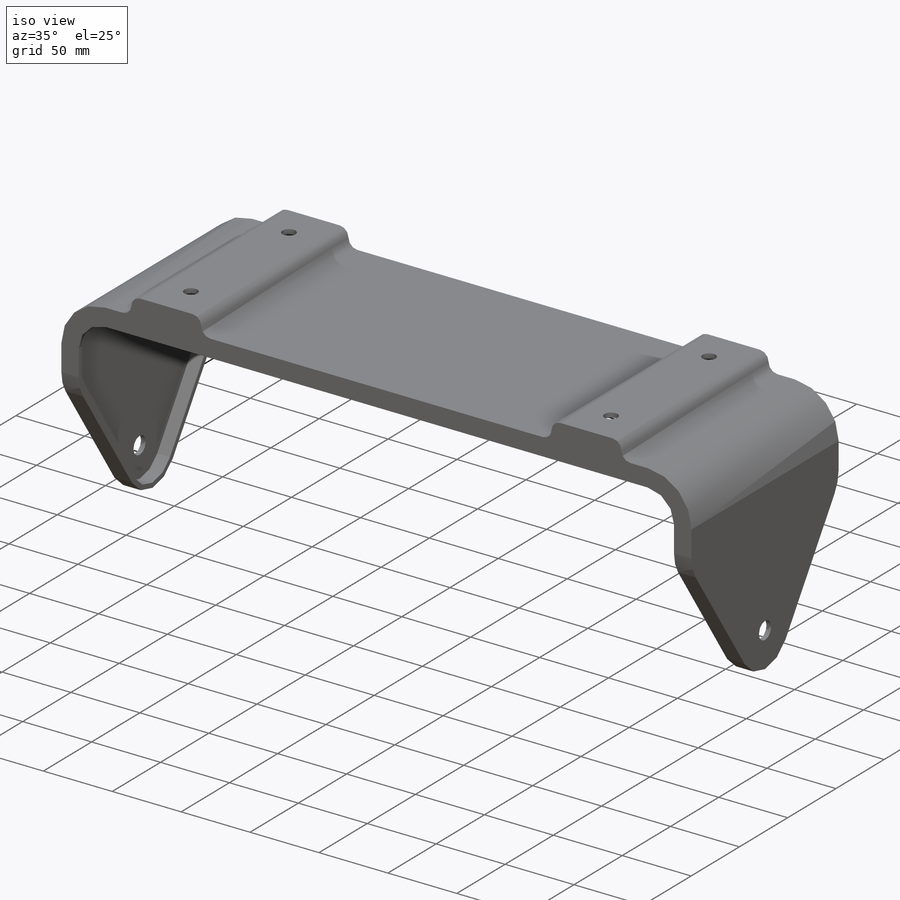
[diagram: iso view]
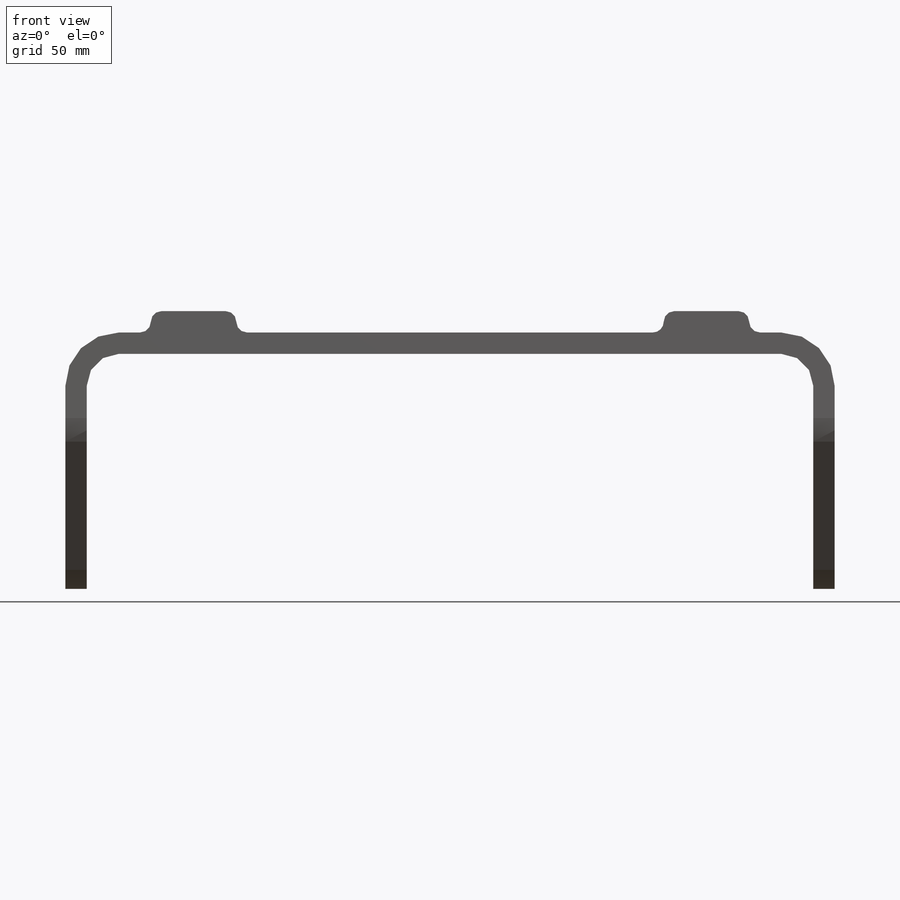
[diagram: front view]
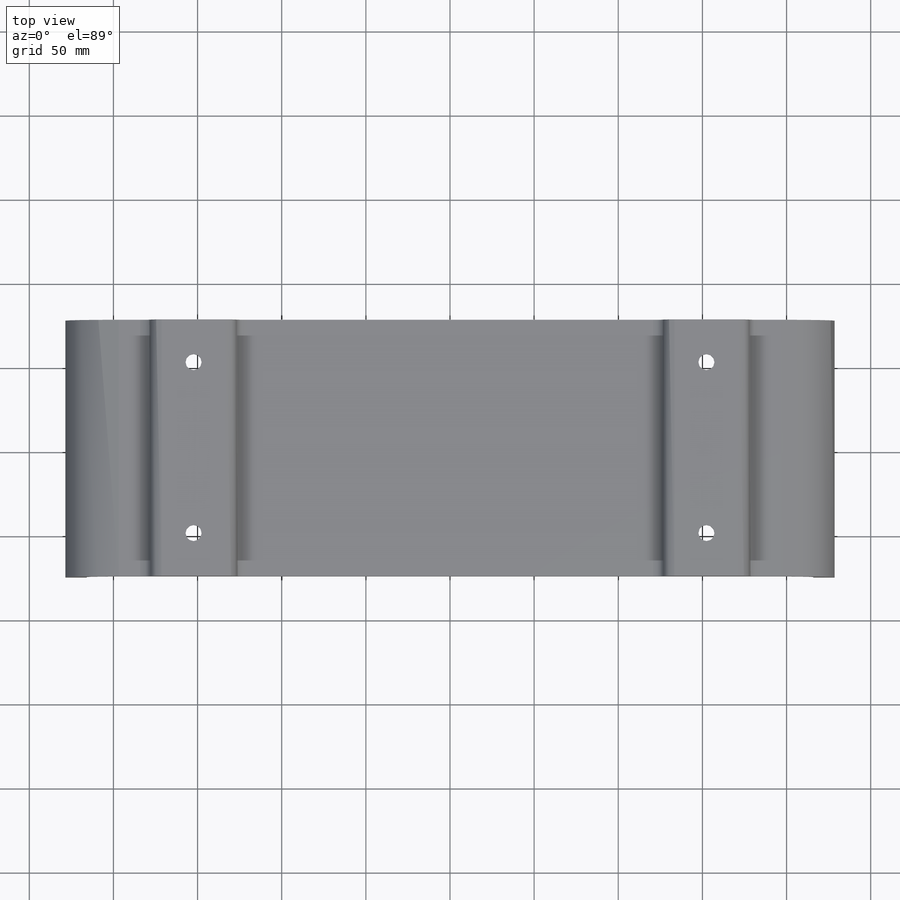
[diagram: top view]
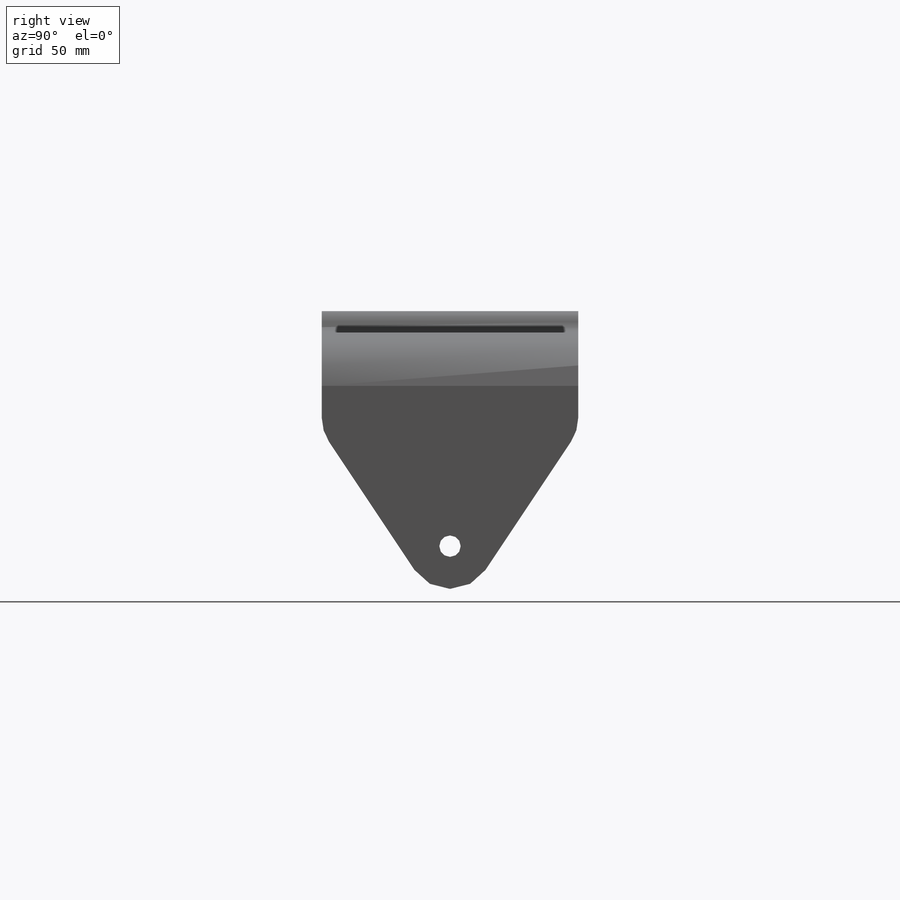
[diagram: right view]
SOLIDWORKS PART (.sldprt)
format: sldprt  version: not decoded by parser v0  size: 687,616 bytes
history: native  units: mm
features: sketch x11, hole x3, cut_extrude x2, extrude x2, fillet x2, material x1, mirror x1, shell x1 (+11 scaffold rows collapsed)
feature tree (34):
  scaffold x11  (default folders/planes/origin — collapsed)
  material  "AISI 1020"
  sketch  "Sketch2"  dims[c1.D2=~22.188574mm c1.D1=114.3mm c2.D2=~246.825381mm c2.D1=~41.80224mm c3.D2=457.2mm c3.D3=25.4mm c3.D4=127.0mm c3.D1=152.4mm c3.D5=12.7mm c3.D6=1.0mm c3.D7=5.0mm]
  sketch  "Sketch3"  dims[c1.D1=25.4mm c1.D2=25.4mm c1.D3=~23.574078mm c2.D1=~249.679852mm c2.D2=~76.20042mm c2.D3=50.8mm c2.D4=76.2mm]
  cut_extrude  "Contour Cut"  [1 undecoded]
  sketch  "Sketch17"  dims[D1=101.6mm]
  extrude  "Front Pivot"  Depth=12.7mm
  fillet  "Front Pivot Fillet"  Radius=6.35mm
  sketch  "Sketch24"  dims[c1.D1=152.4mm c1.D2=~37.554171mm c2.D1=50.8mm c2.D2=152.4mm]
  extrude  "Boss-Extrude1"  Depth=12.7mm
  fillet  "Fillet1"  Radius=6.35mm
  mirror  "Mirror1"
  shell  "Flange Shell"  Thickness=3.4163mm
  hole  "1/2 (0.5) Diameter Hole1"  Diameter=12.7mm Depth=457.2mm
  sketch  "Sketch16"
  sketch  "Sketch15"  dims[hole-wizard template sketch: 60 standard entries collapsed; hole parameters kept: c18.Thru Hole Depth=457.2mm]
  hole  "1/2 (0.5) Diameter Hole2"  Diameter=12.7mm Depth=101.6mm
  sketch  "Sketch19"
  sketch  "Sketch18"  dims[hole-wizard template sketch: 47 standard entries collapsed; hole parameters kept: c15.Hole Depth=101.6mm c15.D3=~14.816244mm c15.Drill Angle=118.0deg]
  sketch  "Sketch23"  dims[c1.D1=~9.913224mm c1.D2=~142.048765mm c2.D1=101.6mm]
  cut_extrude  "Cut-Extrude1"  [1 undecoded]
  hole  "3/8 (0.375) Diameter Hole1"  Diameter=9.525mm Depth=101.6mm
  sketch  "Sketch26"  dims[D1=304.8mm D2=101.6mm]
  sketch  "Sketch25"  dims[hole-wizard template sketch: 47 standard entries collapsed; hole parameters kept: c15.Hole Depth=101.6mm c15.D3=~14.816244mm c15.Drill Angle=118.0deg]
decode coverage: 17 of 22 modeling features carry decoded parameters
note: ~ marks probable driven/reference dimensions
note: 2 parameter values undecoded
note: suppression state not decoded; provenance and decode notes live in map.json
